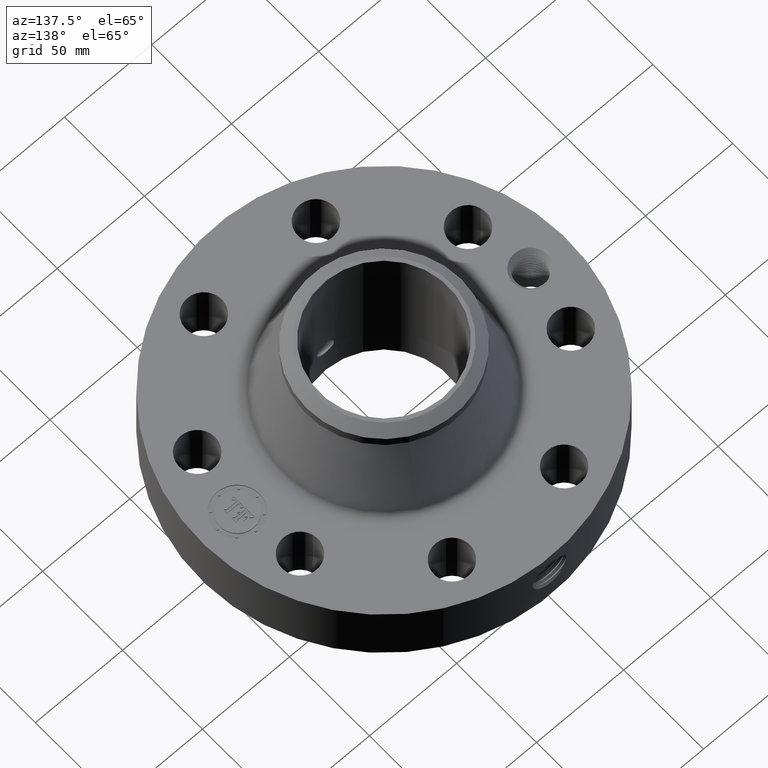
[diagram: clean part render]
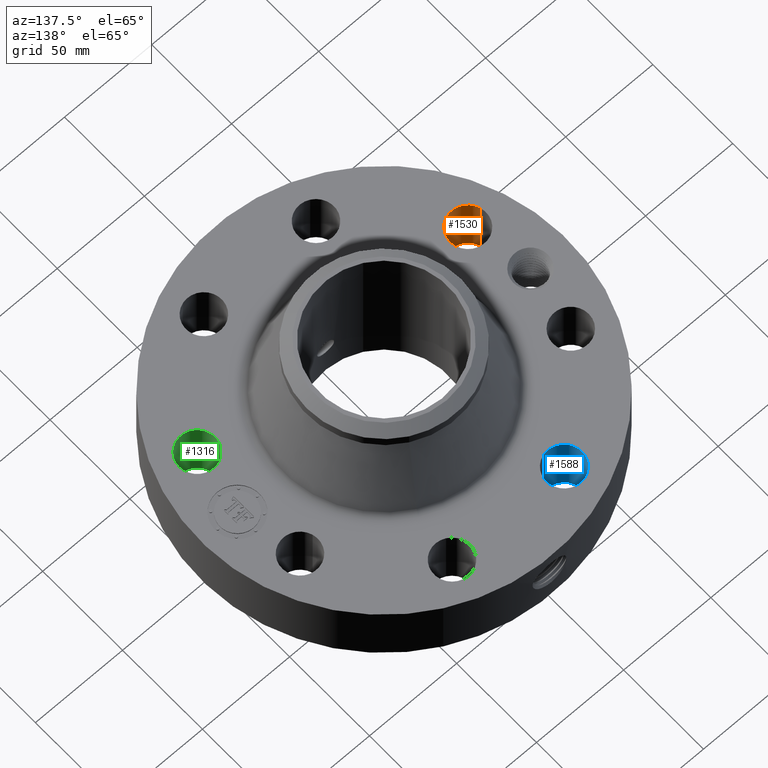
[diagram: same view with three faces highlighted in distinct colors, each labeled with its STEP entity id]
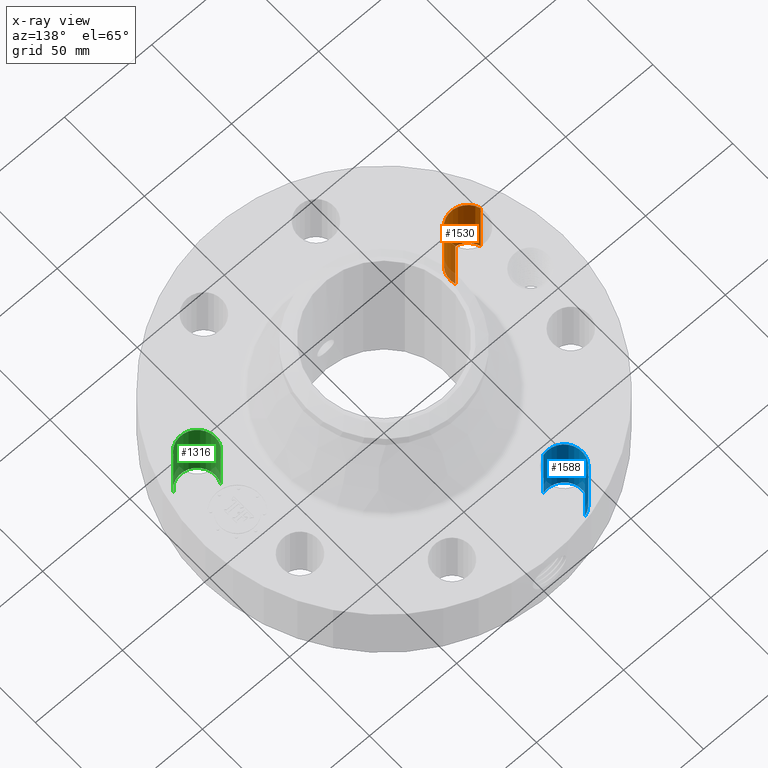
[diagram: x-ray of the same camera — body ghosted, the three highlighted faces saturated]
A machine part, auxiliary view with three faces highlighted in distinct colors.
The next image is the same camera in x-ray (body ghosted, the three faces saturated) — at least one of them is partly hidden behind the body in this view.
Their STEP definitions:

[orange] entity #1530 — the highlighted cylindrical surface (edge-blend (fillet) strip) has radius 10.287 mm, axis along (-0, 0, -1).
#296=AXIS2_PLACEMENT_3D('Circle Axis2P3D',#294,#295,$) ;
#622=AXIS2_PLACEMENT_3D('Circle Axis2P3D',#620,#621,$) ;
#1512=AXIS2_PLACEMENT_3D('Cylinder Axis2P3D',#1509,#1510,#1511) ;
#294=CARTESIAN_POINT('Axis2P3D Location',(-3.05804125262,-1.26668216113,0.0600000000002)) ;
#298=CARTESIAN_POINT('Vertex',(-2.66942365248,-1.15265865102,0.0600000000002)) ;
#300=CARTESIAN_POINT('Vertex',(-3.44665885277,-1.38070567125,0.0600000000002)) ;
#615=CARTESIAN_POINT('Vertex',(-3.44665885277,-1.38070567125,1.56000000001)) ;
#617=CARTESIAN_POINT('Vertex',(-2.66942365248,-1.15265865102,1.56000000001)) ;
#620=CARTESIAN_POINT('Axis2P3D Location',(-3.05804125262,-1.26668216113,1.56000000001)) ;
#1509=CARTESIAN_POINT('Axis2P3D Location',(-3.05804125262,-1.26668216113,1.55606299213)) ;
#1514=CARTESIAN_POINT('Line Origine',(-2.66942365248,-1.15265865102,0.810000000003)) ;
#1519=CARTESIAN_POINT('Line Origine',(-3.44665885277,-1.38070567125,0.810000000003)) ;
#295=DIRECTION('Axis2P3D Direction',(0.,0.,-0.0393700787402)) ;
#621=DIRECTION('Axis2P3D Direction',(0.,0.,-0.0393700787402)) ;
#1510=DIRECTION('Axis2P3D Direction',(-0.,0.,-0.0393700787402)) ;
#1511=DIRECTION('Axis2P3D XDirection',(-0.0377775444876,-0.0110842335096,0.)) ;
#1515=DIRECTION('Vector Direction',(0.,0.,-0.0393700787402)) ;
#1520=DIRECTION('Vector Direction',(0.,0.,-0.0393700787402)) ;
#1516=VECTOR('Line Direction',#1515,0.0393700787402) ;
#1521=VECTOR('Line Direction',#1520,0.0393700787402) ;
#1525=ORIENTED_EDGE('',*,*,#1518,.F.) ;
#1526=ORIENTED_EDGE('',*,*,#302,.T.) ;
#1527=ORIENTED_EDGE('',*,*,#1523,.T.) ;
#1528=ORIENTED_EDGE('',*,*,#624,.F.) ;
#1530=ADVANCED_FACE('PartBody',(#1529),#1513,.F.) ;
#297=CIRCLE('generated circle',#296,0.405000000002) ;
#623=CIRCLE('generated circle',#622,0.405000000002) ;
#1513=CYLINDRICAL_SURFACE('generated cylinder',#1512,0.405000000002) ;
#302=EDGE_CURVE('',#299,#301,#297,.T.) ;
#624=EDGE_CURVE('',#618,#616,#623,.T.) ;
#1518=EDGE_CURVE('',#299,#618,#1517,.F.) ;
#1523=EDGE_CURVE('',#301,#616,#1522,.F.) ;
#1524=EDGE_LOOP('',(#1525,#1526,#1527,#1528)) ;
#1529=FACE_OUTER_BOUND('',#1524,.T.) ;
#1517=LINE('Line',#1514,#1516) ;
#1522=LINE('Line',#1519,#1521) ;
#299=VERTEX_POINT('',#298) ;
#301=VERTEX_POINT('',#300) ;
#616=VERTEX_POINT('',#615) ;
#618=VERTEX_POINT('',#617) ;

[blue] entity #1588 — the highlighted cylindrical surface (edge-blend (fillet) strip) has radius 10.287 mm, axis along (0, 0, -1).
#332=AXIS2_PLACEMENT_3D('Circle Axis2P3D',#330,#331,$) ;
#658=AXIS2_PLACEMENT_3D('Circle Axis2P3D',#656,#657,$) ;
#1570=AXIS2_PLACEMENT_3D('Cylinder Axis2P3D',#1567,#1568,#1569) ;
#330=CARTESIAN_POINT('Axis2P3D Location',(-1.26668216113,3.05804125262,0.0600000000002)) ;
#334=CARTESIAN_POINT('Vertex',(-1.15265865102,2.66942365248,0.0600000000002)) ;
#336=CARTESIAN_POINT('Vertex',(-1.38070567125,3.44665885277,0.0600000000002)) ;
#651=CARTESIAN_POINT('Vertex',(-1.38070567125,3.44665885277,1.56000000001)) ;
#653=CARTESIAN_POINT('Vertex',(-1.15265865102,2.66942365248,1.56000000001)) ;
#656=CARTESIAN_POINT('Axis2P3D Location',(-1.26668216113,3.05804125262,1.56000000001)) ;
#1567=CARTESIAN_POINT('Axis2P3D Location',(-1.26668216113,3.05804125262,1.55606299213)) ;
#1572=CARTESIAN_POINT('Line Origine',(-1.15265865102,2.66942365248,0.810000000003)) ;
#1577=CARTESIAN_POINT('Line Origine',(-1.38070567125,3.44665885277,0.810000000003)) ;
#331=DIRECTION('Axis2P3D Direction',(0.,0.,-0.0393700787402)) ;
#657=DIRECTION('Axis2P3D Direction',(0.,0.,-0.0393700787402)) ;
#1568=DIRECTION('Axis2P3D Direction',(0.,0.,-0.0393700787402)) ;
#1569=DIRECTION('Axis2P3D XDirection',(-0.0110842335096,0.0377775444876,0.)) ;
#1573=DIRECTION('Vector Direction',(0.,0.,-0.0393700787402)) ;
#1578=DIRECTION('Vector Direction',(0.,0.,-0.0393700787402)) ;
#1574=VECTOR('Line Direction',#1573,0.0393700787402) ;
#1579=VECTOR('Line Direction',#1578,0.0393700787402) ;
#1583=ORIENTED_EDGE('',*,*,#1576,.F.) ;
#1584=ORIENTED_EDGE('',*,*,#338,.T.) ;
#1585=ORIENTED_EDGE('',*,*,#1581,.T.) ;
#1586=ORIENTED_EDGE('',*,*,#660,.F.) ;
#1588=ADVANCED_FACE('PartBody',(#1587),#1571,.F.) ;
#333=CIRCLE('generated circle',#332,0.405000000002) ;
#659=CIRCLE('generated circle',#658,0.405000000002) ;
#1571=CYLINDRICAL_SURFACE('generated cylinder',#1570,0.405000000002) ;
#338=EDGE_CURVE('',#335,#337,#333,.T.) ;
#660=EDGE_CURVE('',#654,#652,#659,.T.) ;
#1576=EDGE_CURVE('',#335,#654,#1575,.F.) ;
#1581=EDGE_CURVE('',#337,#652,#1580,.F.) ;
#1582=EDGE_LOOP('',(#1583,#1584,#1585,#1586)) ;
#1587=FACE_OUTER_BOUND('',#1582,.T.) ;
#1575=LINE('Line',#1572,#1574) ;
#1580=LINE('Line',#1577,#1579) ;
#335=VERTEX_POINT('',#334) ;
#337=VERTEX_POINT('',#336) ;
#652=VERTEX_POINT('',#651) ;
#654=VERTEX_POINT('',#653) ;

[green] entity #1316 — the highlighted cylindrical surface (edge-blend (fillet) strip) has radius 10.287 mm, axis along (0, -0, -1).
#224=AXIS2_PLACEMENT_3D('Circle Axis2P3D',#222,#223,$) ;
#550=AXIS2_PLACEMENT_3D('Circle Axis2P3D',#548,#549,$) ;
#1298=AXIS2_PLACEMENT_3D('Cylinder Axis2P3D',#1295,#1296,#1297) ;
#222=CARTESIAN_POINT('Axis2P3D Location',(3.05804125262,-1.26668216113,0.0600000000002)) ;
#226=CARTESIAN_POINT('Vertex',(3.41346219019,-1.46084950427,0.0600000000002)) ;
#228=CARTESIAN_POINT('Vertex',(2.70262031506,-1.072514818,0.0600000000002)) ;
#543=CARTESIAN_POINT('Vertex',(2.70262031506,-1.072514818,1.56000000001)) ;
#545=CARTESIAN_POINT('Vertex',(3.41346219019,-1.46084950427,1.56000000001)) ;
#548=CARTESIAN_POINT('Axis2P3D Location',(3.05804125262,-1.26668216113,1.56000000001)) ;
#1295=CARTESIAN_POINT('Axis2P3D Location',(3.05804125262,-1.26668216113,1.55606299213)) ;
#1300=CARTESIAN_POINT('Line Origine',(3.41346219019,-1.46084950427,0.810000000003)) ;
#1305=CARTESIAN_POINT('Line Origine',(2.70262031506,-1.072514818,0.810000000003)) ;
#223=DIRECTION('Axis2P3D Direction',(0.,0.,-0.0393700787402)) ;
#549=DIRECTION('Axis2P3D Direction',(0.,0.,-0.0393700787402)) ;
#1296=DIRECTION('Axis2P3D Direction',(0.,-0.,-0.0393700787402)) ;
#1297=DIRECTION('Axis2P3D XDirection',(-0.0345504945626,0.0188750212049,0.)) ;
#1301=DIRECTION('Vector Direction',(0.,0.,-0.0393700787402)) ;
#1306=DIRECTION('Vector Direction',(0.,0.,-0.0393700787402)) ;
#1302=VECTOR('Line Direction',#1301,0.0393700787402) ;
#1307=VECTOR('Line Direction',#1306,0.0393700787402) ;
#1311=ORIENTED_EDGE('',*,*,#1304,.F.) ;
#1312=ORIENTED_EDGE('',*,*,#230,.T.) ;
#1313=ORIENTED_EDGE('',*,*,#1309,.T.) ;
#1314=ORIENTED_EDGE('',*,*,#552,.F.) ;
#1316=ADVANCED_FACE('PartBody',(#1315),#1299,.F.) ;
#225=CIRCLE('generated circle',#224,0.405000000002) ;
#551=CIRCLE('generated circle',#550,0.405000000002) ;
#1299=CYLINDRICAL_SURFACE('generated cylinder',#1298,0.405000000002) ;
#230=EDGE_CURVE('',#227,#229,#225,.T.) ;
#552=EDGE_CURVE('',#546,#544,#551,.T.) ;
#1304=EDGE_CURVE('',#227,#546,#1303,.F.) ;
#1309=EDGE_CURVE('',#229,#544,#1308,.F.) ;
#1310=EDGE_LOOP('',(#1311,#1312,#1313,#1314)) ;
#1315=FACE_OUTER_BOUND('',#1310,.T.) ;
#1303=LINE('Line',#1300,#1302) ;
#1308=LINE('Line',#1305,#1307) ;
#227=VERTEX_POINT('',#226) ;
#229=VERTEX_POINT('',#228) ;
#544=VERTEX_POINT('',#543) ;
#546=VERTEX_POINT('',#545) ;